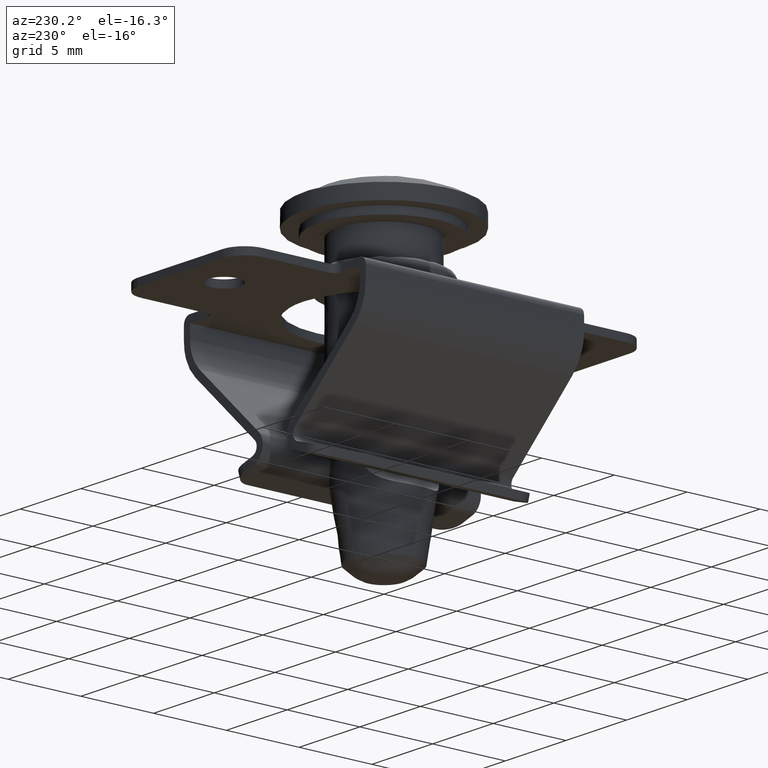
[diagram: clean part render]
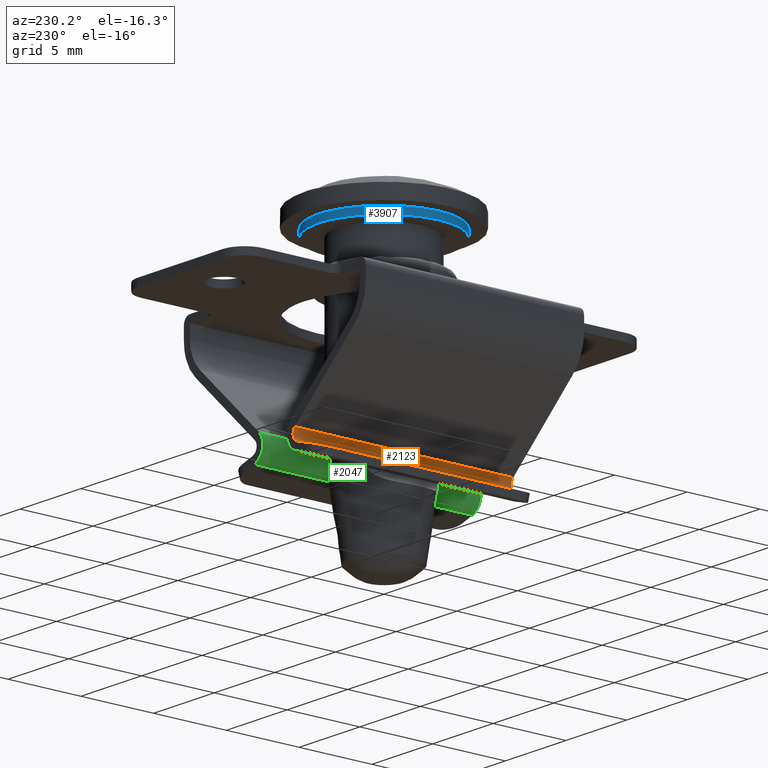
[diagram: same view with three faces highlighted in distinct colors, each labeled with its STEP entity id]
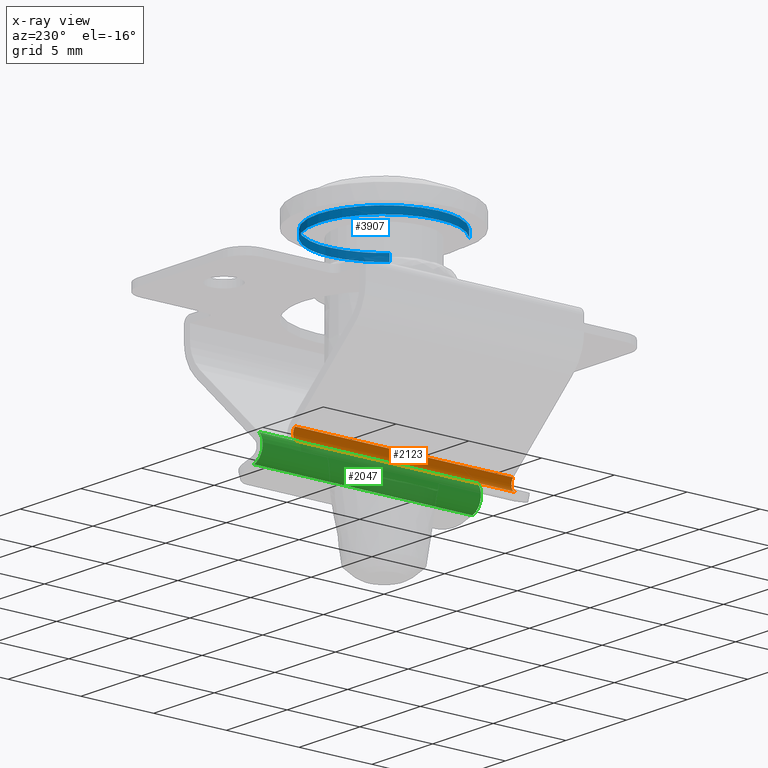
[diagram: x-ray of the same camera — body ghosted, the three highlighted faces saturated]
A machine part, auxiliary view with three faces highlighted in distinct colors.
The next image is the same camera in x-ray (body ghosted, the three faces saturated) — at least one of them is partly hidden behind the body in this view.
Their STEP definitions:

[orange] entity #2123 — the highlighted face is a freeform B-spline surface patch.
#1549=CARTESIAN_POINT('',(-7.500000000000000,8.971792748907109,-1.834435504776570));
#1550=VERTEX_POINT('',#1549);
#1556=CARTESIAN_POINT('',(-7.500000000000000,8.133000007164240,-1.659999992273685));
#1557=VERTEX_POINT('',#1556);
#1558=CARTESIAN_POINT('',(-7.500000000000000,8.133000007164240,-1.659999992273685));
#1559=CARTESIAN_POINT('',(-7.499999999999996,8.176670734481323,-1.612803575467292));
#1560=CARTESIAN_POINT('',(-7.500000000000007,8.260492134698961,-1.551787545377183));
#1561=CARTESIAN_POINT('',(-7.500000000000000,8.398446009235787,-1.505296150107499));
#1562=CARTESIAN_POINT('',(-7.499999999999994,8.522247537905525,-1.494848047483447));
#1563=CARTESIAN_POINT('',(-7.500000000000014,8.639311870682144,-1.515302620307627));
#1564=CARTESIAN_POINT('',(-7.500000000000010,8.748476894084332,-1.561177648108328));
#1565=CARTESIAN_POINT('',(-7.499999999999954,8.840626944895684,-1.627335518974190));
#1566=CARTESIAN_POINT('',(-7.500000000000094,8.921175771671351,-1.721618887267163));
#1567=CARTESIAN_POINT('',(-7.499999999999929,8.957608628739832,-1.793991250087982));
#1568=CARTESIAN_POINT('',(-7.500000000000000,8.971792748907109,-1.834435504776570));
#1569=B_SPLINE_CURVE_WITH_KNOTS('',3,(#1558,#1559,#1560,#1561,#1562,#1563,#1564,#1565,#1566,#1567,#1568),.UNSPECIFIED.,.F.,.U.,(4,1,1,1,1,1,1,1,4),(0.000000047820411,0.192873065164812,0.305389872596613,0.433978648164178,0.562550272810508,0.658989671225016,0.787577078262134,0.900091944385743,1.028671961137329),.UNSPECIFIED.);
#1570=EDGE_CURVE('',#1557,#1550,#1569,.T.);
#1891=CARTESIAN_POINT('',(7.500000000000000,8.971792748907101,-1.834435504776575));
#1892=VERTEX_POINT('',#1891);
#1995=CARTESIAN_POINT('',(7.500000000000000,8.133000007164240,-1.659999992273685));
#1996=VERTEX_POINT('',#1995);
#2002=CARTESIAN_POINT('',(7.500000000000000,8.971792748907101,-1.834435504776575));
#2003=CARTESIAN_POINT('',(7.500000000000009,8.950556566477342,-1.773748070728701));
#2004=CARTESIAN_POINT('',(7.499999999999984,8.892492286803103,-1.674937850863475));
#2005=CARTESIAN_POINT('',(7.500000000000016,8.780971890801318,-1.580447431258133));
#2006=CARTESIAN_POINT('',(7.499999999999990,8.670153406886309,-1.525262321422904));
#2007=CARTESIAN_POINT('',(7.500000000000017,8.554646030767096,-1.497330979364046));
#2008=CARTESIAN_POINT('',(7.499999999999987,8.435830156894996,-1.499702661000997));
#2009=CARTESIAN_POINT('',(7.500000000000013,8.326166762356614,-1.527098629260590));
#2010=CARTESIAN_POINT('',(7.500000000000003,8.224397288371923,-1.576715401008296));
#2011=CARTESIAN_POINT('',(7.499999999999989,8.162132545923557,-1.628563786054673));
#2012=CARTESIAN_POINT('',(7.500000000000000,8.133000007164240,-1.659999992273685));
#2013=B_SPLINE_CURVE_WITH_KNOTS('',3,(#2002,#2003,#2004,#2005,#2006,#2007,#2008,#2009,#2010,#2011,#2012),.UNSPECIFIED.,.F.,.U.,(4,1,1,1,1,1,1,1,4),(0.000000047820665,0.192873065164996,0.337537578228763,0.433978648164281,0.562550272810561,0.691137028152030,0.787577078262161,0.900091944385748,1.028671961137325),.UNSPECIFIED.);
#2014=EDGE_CURVE('',#1892,#1996,#2013,.T.);
#2095=CARTESIAN_POINT('',(-7.875000000000000,8.123180026408198,-1.670907028688580));
#2096=CARTESIAN_POINT('',(7.884375000000000,8.123180026408198,-1.670907028688580));
#2097=CARTESIAN_POINT('',(-7.875000000000002,8.742338489134074,-0.962582435342465));
#2098=CARTESIAN_POINT('',(7.884375000000000,8.742338489134074,-0.962582435342465));
#2099=CARTESIAN_POINT('',(-7.875000000000000,8.983337172102607,-1.871978150260585));
#2100=CARTESIAN_POINT('',(7.884375000000000,8.983337172102607,-1.871978150260585));
#2108=(BOUNDED_SURFACE()B_SPLINE_SURFACE(1,2,((#2095,#2097,#2099),(#2096,#2098,#2100)),.UNSPECIFIED.,.F.,.F.,.U.)B_SPLINE_SURFACE_WITH_KNOTS((2,2),(3,3),(0.0,15.759375000000000),(0.0,1.0),.UNSPECIFIED.)GEOMETRIC_REPRESENTATION_ITEM()RATIONAL_B_SPLINE_SURFACE(((1.0,0.469471562785891,1.0),(1.0,0.469471562785891,1.0)))REPRESENTATION_ITEM('')SURFACE());
#2109=CARTESIAN_POINT('',(-7.500000000000000,8.971792748907109,-1.834435504776570));
#2110=CARTESIAN_POINT('',(7.500000000000000,8.971792748907101,-1.834435504776575));
#2111=QUASI_UNIFORM_CURVE('',1,(#2109,#2110),.UNSPECIFIED.,.F.,.U.);
#2112=EDGE_CURVE('',#1550,#1892,#2111,.T.);
#2113=ORIENTED_EDGE('',*,*,#2112,.T.);
#2114=ORIENTED_EDGE('',*,*,#2014,.T.);
#2115=CARTESIAN_POINT('',(-7.500000000000000,8.133000007164240,-1.659999992273685));
#2116=CARTESIAN_POINT('',(7.500000000000000,8.133000007164240,-1.659999992273685));
#2117=QUASI_UNIFORM_CURVE('',1,(#2115,#2116),.UNSPECIFIED.,.F.,.U.);
#2118=EDGE_CURVE('',#1557,#1996,#2117,.T.);
#2119=ORIENTED_EDGE('',*,*,#2118,.F.);
#2120=ORIENTED_EDGE('',*,*,#1570,.T.);
#2121=EDGE_LOOP('',(#2113,#2114,#2119,#2120));
#2122=FACE_OUTER_BOUND('',#2121,.T.);
#2123=ADVANCED_FACE('',(#2122),#2108,.F.);

[blue] entity #3907 — the highlighted face is a freeform B-spline surface patch.
#3741=CARTESIAN_POINT('',(-2.905839172719114,-3.436000393232092,19.512500000000014));
#3742=CARTESIAN_POINT('',(-3.004176027767804,-3.352836524541817,19.512499999999999));
#3743=CARTESIAN_POINT('',(-3.097595590621892,-3.264184669555293,19.512499999999999));
#3744=CARTESIAN_POINT('',(-6.361780260177186,-0.166589078933401,19.512499999999999));
#3745=CARTESIAN_POINT('',(-3.264184669555293,3.097595590621892,19.512499999999999));
#3746=CARTESIAN_POINT('',(-0.166589078933401,6.361780260177186,19.512499999999999));
#3747=CARTESIAN_POINT('',(3.097595590621892,3.264184669555293,19.512499999999999));
#3748=CARTESIAN_POINT('',(6.361780260177186,0.166589078933401,19.512499999999999));
#3749=CARTESIAN_POINT('',(3.264184669555293,-3.097595590621892,19.512499999999999));
#3750=CARTESIAN_POINT('',(-2.905839172719114,-3.436000393232092,18.987187500000001));
#3751=CARTESIAN_POINT('',(-3.004176027767804,-3.352836524541817,18.987187500000001));
#3752=CARTESIAN_POINT('',(-3.097595590621892,-3.264184669555293,18.987187500000001));
#3753=CARTESIAN_POINT('',(-6.361780260177186,-0.166589078933401,18.987187499999997));
#3754=CARTESIAN_POINT('',(-3.264184669555293,3.097595590621892,18.987187500000001));
#3755=CARTESIAN_POINT('',(-0.166589078933401,6.361780260177186,18.987187499999997));
#3756=CARTESIAN_POINT('',(3.097595590621892,3.264184669555293,18.987187500000001));
#3757=CARTESIAN_POINT('',(6.361780260177186,0.166589078933401,18.987187499999997));
#3758=CARTESIAN_POINT('',(3.264184669555293,-3.097595590621892,18.987187500000001));
#3766=(BOUNDED_SURFACE()B_SPLINE_SURFACE(2,1,((#3741,#3750),(#3742,#3751),(#3743,#3752),(#3744,#3753),(#3745,#3754),(#3746,#3755),(#3747,#3756),(#3748,#3757),(#3749,#3758)),.UNSPECIFIED.,.F.,.F.,.U.)B_SPLINE_SURFACE_WITH_KNOTS((3,2,2,2,3),(2,2),(0.0,0.298233764908629,7.754077887624337,15.209922010340049,22.665766133055751),(0.0,1.0),.UNSPECIFIED.)GEOMETRIC_REPRESENTATION_ITEM()RATIONAL_B_SPLINE_SURFACE(((0.977505800795127,0.977505800795127),(0.988284271247462,0.988284271247462),(1.0,1.0),(0.707106781186548,0.707106781186548),(1.0,1.0),(0.707106781186548,0.707106781186548),(1.0,1.0),(0.707106781186548,0.707106781186548),(1.0,1.0)))REPRESENTATION_ITEM('')SURFACE());
#3767=CARTESIAN_POINT('',(-2.905839271581737,-3.436000499743349,18.999999999998639));
#3768=VERTEX_POINT('',#3767);
#3769=CARTESIAN_POINT('',(-4.500000000000000,0.0,19.0));
#3770=VERTEX_POINT('',#3769);
#3771=CARTESIAN_POINT('',(-2.905839271581737,-3.436000499743349,18.999999999998639));
#3772=CARTESIAN_POINT('',(-3.185773554908001,-3.199383879267502,18.999999999998799));
#3773=CARTESIAN_POINT('',(-3.561829630638095,-2.792732886139677,18.999999999998860));
#3774=CARTESIAN_POINT('',(-4.008524374156168,-2.085563259212208,18.999999999999190));
#3775=CARTESIAN_POINT('',(-4.288032545918969,-1.437597772170152,18.999999999999432));
#3776=CARTESIAN_POINT('',(-4.463365417796361,-0.702504246642214,18.999999999999709));
#3777=CARTESIAN_POINT('',(-4.500011560178890,-0.234169531220394,18.999999999999918));
#3778=CARTESIAN_POINT('',(-4.500000000000000,0.0,19.0));
#3779=B_SPLINE_CURVE_WITH_KNOTS('',3,(#3771,#3772,#3773,#3774,#3775,#3776,#3777,#3778),.UNSPECIFIED.,.F.,.U.,(4,1,1,1,1,4),(6.967190E-009,1.099579415270608,1.649370970763869,2.504596954173040,3.207106231559978,3.909614863635972),.UNSPECIFIED.);
#3780=EDGE_CURVE('',#3768,#3770,#3779,.T.);
#3781=ORIENTED_EDGE('',*,*,#3780,.F.);
#3782=CARTESIAN_POINT('',(-2.905839271512515,-3.436000499801891,19.500000000000000));
#3783=VERTEX_POINT('',#3782);
#3784=CARTESIAN_POINT('',(-2.905839271512515,-3.436000499801891,19.500000000000000));
#3785=CARTESIAN_POINT('',(-2.905839271581737,-3.436000499743349,18.999999999998639));
#3786=QUASI_UNIFORM_CURVE('',1,(#3784,#3785),.UNSPECIFIED.,.F.,.U.);
#3787=EDGE_CURVE('',#3783,#3768,#3786,.T.);
#3788=ORIENTED_EDGE('',*,*,#3787,.F.);
#3789=CARTESIAN_POINT('',(-4.500000000000000,0.0,19.500000000000000));
#3790=VERTEX_POINT('',#3789);
#3791=CARTESIAN_POINT('',(-2.905839271512515,-3.436000499801891,19.500000000000000));
#3792=CARTESIAN_POINT('',(-3.076872505834279,-3.291369981887627,19.500000000000011));
#3793=CARTESIAN_POINT('',(-3.411845991498382,-2.962189245745997,19.500000000000021));
#3794=CARTESIAN_POINT('',(-3.813409628015430,-2.420632730963018,19.499999999999961));
#3795=CARTESIAN_POINT('',(-4.100849318959452,-1.880009800253740,19.500000000000050));
#3796=CARTESIAN_POINT('',(-4.316450640093171,-1.318388848197045,19.500000000000089));
#3797=CARTESIAN_POINT('',(-4.463364429353994,-0.702505204156519,19.499999999999829));
#3798=CARTESIAN_POINT('',(-4.500014556150179,-0.234169762712393,19.500000000000121));
#3799=CARTESIAN_POINT('',(-4.500000000000000,0.0,19.500000000000000));
#3800=B_SPLINE_CURVE_WITH_KNOTS('',3,(#3791,#3792,#3793,#3794,#3795,#3796,#3797,#3798,#3799),.UNSPECIFIED.,.F.,.U.,(4,1,1,1,1,1,4),(6.967205E-009,0.671962734726780,1.405017916457402,2.015890263878275,2.504596954231114,3.207106231634340,3.909614863726631),.UNSPECIFIED.);
#3801=EDGE_CURVE('',#3783,#3790,#3800,.T.);
#3802=ORIENTED_EDGE('',*,*,#3801,.T.);
#3803=CARTESIAN_POINT('',(0.000000588841200,4.499999999999962,19.500000000000000));
#3804=VERTEX_POINT('',#3803);
#3805=CARTESIAN_POINT('',(-4.500000000000000,0.0,19.500000000000000));
#3806=CARTESIAN_POINT('',(-4.500047640659374,0.303730601035654,19.500000000000071));
#3807=CARTESIAN_POINT('',(-4.448541250168162,0.809923307536452,19.499999999999829));
#3808=CARTESIAN_POINT('',(-4.266464232065808,1.467834475197188,19.500000000000210));
#3809=CARTESIAN_POINT('',(-4.017681657765785,2.063329566712382,19.499999999999812));
#3810=CARTESIAN_POINT('',(-3.678666397561236,2.625013837085790,19.500000000000039));
#3811=CARTESIAN_POINT('',(-3.171891136312692,3.223581346718181,19.500000000000000));
#3812=CARTESIAN_POINT('',(-2.611249796335556,3.692407004062425,19.499999999999950));
#3813=CARTESIAN_POINT('',(-2.052205053937086,4.015876154965495,19.500000000000011));
#3814=CARTESIAN_POINT('',(-1.494852477284561,4.258878161815503,19.500000000000000));
#3815=CARTESIAN_POINT('',(-0.837542293383547,4.447306197242847,19.499999999999940));
#3816=CARTESIAN_POINT('',(-0.285319679317905,4.500032079022867,19.499999999999950));
#3817=CARTESIAN_POINT('',(0.000000588841200,4.499999999999962,19.500000000000000));
#3818=B_SPLINE_CURVE_WITH_KNOTS('',3,(#3805,#3806,#3807,#3808,#3809,#3810,#3811,#3812,#3813,#3814,#3815,#3816,#3817),.UNSPECIFIED.,.F.,.U.,(4,1,1,1,1,1,1,1,1,1,4),(0.000000020420186,0.911180480753123,1.518641582108043,2.043266651518565,2.844007677394900,3.479080105565057,4.390253509514920,5.025328967888424,5.411893680457210,6.212638836206521,7.068594891014745),.UNSPECIFIED.);
#3819=EDGE_CURVE('',#3790,#3804,#3818,.T.);
#3820=ORIENTED_EDGE('',*,*,#3819,.T.);
#3821=CARTESIAN_POINT('',(4.500000000000000,0.0,19.500000000000000));
#3822=VERTEX_POINT('',#3821);
#3823=CARTESIAN_POINT('',(0.000000588841200,4.499999999999962,19.500000000000000));
#3824=CARTESIAN_POINT('',(0.184077028389136,4.500003425898332,19.500000000000021));
#3825=CARTESIAN_POINT('',(0.607455930381796,4.473996540574977,19.500000000000000));
#3826=CARTESIAN_POINT('',(1.177260643751965,4.357019149096866,19.499999999999918));
#3827=CARTESIAN_POINT('',(1.821504524792498,4.133179706045200,19.500000000000298));
#3828=CARTESIAN_POINT('',(2.386872071057021,3.837661704665374,19.499999999999389));
#3829=CARTESIAN_POINT('',(2.882051767729744,3.467994808030852,19.500000000000469));
#3830=CARTESIAN_POINT('',(3.292652374539793,3.084220742159210,19.499999999999591));
#3831=CARTESIAN_POINT('',(3.730884449498461,2.560225165466606,19.500000000000149));
#3832=CARTESIAN_POINT('',(4.114030927617885,1.883868032171247,19.500000000000121));
#3833=CARTESIAN_POINT('',(4.338186849038465,1.238593218391304,19.499999999999879));
#3834=CARTESIAN_POINT('',(4.467894678509404,0.635059223535907,19.500000000000139));
#3835=CARTESIAN_POINT('',(4.500017817502476,0.248504838822584,19.499999999999869));
#3836=CARTESIAN_POINT('',(4.500000000000000,0.0,19.500000000000000));
#3837=B_SPLINE_CURVE_WITH_KNOTS('',3,(#3823,#3824,#3825,#3826,#3827,#3828,#3829,#3830,#3831,#3832,#3833,#3834,#3835,#3836),.UNSPECIFIED.,.F.,.U.,(4,1,1,1,1,1,1,1,1,1,1,4),(0.000000020473748,0.552230868754044,1.270134197890891,1.739536763959507,2.595501552504408,3.175354932014174,3.589514559874035,4.279808795224893,5.218610211523167,5.908907697461250,6.323082554488142,7.068594227252427),.UNSPECIFIED.);
#3838=EDGE_CURVE('',#3804,#3822,#3837,.T.);
#3839=ORIENTED_EDGE('',*,*,#3838,.T.);
#3840=CARTESIAN_POINT('',(3.264184551240139,-3.097595501734862,19.500000000000000));
#3841=VERTEX_POINT('',#3840);
#3842=CARTESIAN_POINT('',(4.500000000000000,0.0,19.500000000000000));
#3843=CARTESIAN_POINT('',(4.500013247987531,-0.249118077258339,19.499999999999961));
#3844=CARTESIAN_POINT('',(4.454099033070094,-0.800739555067997,19.500000000000099));
#3845=CARTESIAN_POINT('',(4.253634620474128,-1.533923763466624,19.499999999999961));
#3846=CARTESIAN_POINT('',(3.877024070631508,-2.342297514392991,19.499999999999950));
#3847=CARTESIAN_POINT('',(3.527628687741458,-2.820154103583067,19.500000000000110));
#3848=CARTESIAN_POINT('',(3.264184551240139,-3.097595501734862,19.500000000000000));
#3849=B_SPLINE_CURVE_WITH_KNOTS('',3,(#3842,#3843,#3844,#3845,#3846,#3847,#3848),.UNSPECIFIED.,.F.,.U.,(4,1,1,1,4),(4.870334E-009,0.747356135298023,1.654862435139214,2.268759620760826,3.416486980069099),.UNSPECIFIED.);
#3850=EDGE_CURVE('',#3822,#3841,#3849,.T.);
#3851=ORIENTED_EDGE('',*,*,#3850,.T.);
#3852=CARTESIAN_POINT('',(3.264184551098147,-3.097595501884490,19.000000000004640));
#3853=VERTEX_POINT('',#3852);
#3854=CARTESIAN_POINT('',(3.264184551240139,-3.097595501734862,19.500000000000000));
#3855=CARTESIAN_POINT('',(3.264184551098147,-3.097595501884490,19.000000000004640));
#3856=QUASI_UNIFORM_CURVE('',1,(#3854,#3855),.UNSPECIFIED.,.F.,.U.);
#3857=EDGE_CURVE('',#3841,#3853,#3856,.T.);
#3858=ORIENTED_EDGE('',*,*,#3857,.T.);
#3859=CARTESIAN_POINT('',(4.500000000000000,0.0,19.0));
#3860=VERTEX_POINT('',#3859);
#3861=CARTESIAN_POINT('',(4.500000000000000,0.0,19.0));
#3862=CARTESIAN_POINT('',(4.500046189073533,-0.302505218425749,19.000000000000501));
#3863=CARTESIAN_POINT('',(4.449556822531994,-0.800722973062059,19.000000000001119));
#3864=CARTESIAN_POINT('',(4.259074355859011,-1.497352375640515,19.000000000002292));
#3865=CARTESIAN_POINT('',(4.033410602514708,-2.021844943351866,19.000000000003070));
#3866=CARTESIAN_POINT('',(3.708683249522810,-2.574975717783404,19.000000000003709));
#3867=CARTESIAN_POINT('',(3.447935770988543,-2.904000621611451,19.000000000004452));
#3868=CARTESIAN_POINT('',(3.264184551098147,-3.097595501884490,19.000000000004640));
#3869=B_SPLINE_CURVE_WITH_KNOTS('',3,(#3861,#3862,#3863,#3864,#3865,#3866,#3867,#3868),.UNSPECIFIED.,.F.,.U.,(4,1,1,1,1,4),(4.869848E-009,0.907504478657108,1.494716913576298,2.161995087988213,2.615747966359876,3.416486980275375),.UNSPECIFIED.);
#3870=EDGE_CURVE('',#3860,#3853,#3869,.T.);
#3871=ORIENTED_EDGE('',*,*,#3870,.F.);
#3872=CARTESIAN_POINT('',(0.000000588841200,4.499999999999962,19.0));
#3873=VERTEX_POINT('',#3872);
#3874=CARTESIAN_POINT('',(0.000000588841200,4.499999999999962,19.0));
#3875=CARTESIAN_POINT('',(0.239299941865763,4.500017217707193,19.000000000000050));
#3876=CARTESIAN_POINT('',(0.662671923517313,4.466145096726708,18.999999999999940));
#3877=CARTESIAN_POINT('',(1.274481264584797,4.328763687845162,19.000000000000050));
#3878=CARTESIAN_POINT('',(1.811798154193700,4.132774854032727,18.999999999999869));
#3879=CARTESIAN_POINT('',(2.425704079065157,3.814295255655927,19.000000000000330));
#3880=CARTESIAN_POINT('',(2.966895423107242,3.410350741639975,18.999999999999901));
#3881=CARTESIAN_POINT('',(3.453214025019762,2.905731140827781,19.000000000000060));
#3882=CARTESIAN_POINT('',(3.847332866654501,2.370936469113222,19.000000000000270));
#3883=CARTESIAN_POINT('',(4.181542463755793,1.721942649147526,18.999999999999300));
#3884=CARTESIAN_POINT('',(4.435656013577683,0.911161759698104,19.000000000000728));
#3885=CARTESIAN_POINT('',(4.500061549576556,0.331343250390778,18.999999999999609));
#3886=CARTESIAN_POINT('',(4.500000000000000,0.0,19.0));
#3887=B_SPLINE_CURVE_WITH_KNOTS('',3,(#3874,#3875,#3876,#3877,#3878,#3879,#3880,#3881,#3882,#3883,#3884,#3885,#3886),.UNSPECIFIED.,.F.,.U.,(4,1,1,1,1,1,1,1,1,1,4),(0.000000020473748,0.717896329648025,1.270134197890891,1.877596235765652,2.429834300933950,3.341016199324105,3.893239546361931,4.528315414527145,5.329057435633021,6.074575935213428,7.068594227252427),.UNSPECIFIED.);
#3888=EDGE_CURVE('',#3873,#3860,#3887,.T.);
#3889=ORIENTED_EDGE('',*,*,#3888,.F.);
#3890=CARTESIAN_POINT('',(-4.500000000000000,0.0,19.0));
#3891=CARTESIAN_POINT('',(-4.500065864044933,0.349750790723124,19.000000000000060));
#3892=CARTESIAN_POINT('',(-4.426668544212285,0.975588515477063,18.999999999999918));
#3893=CARTESIAN_POINT('',(-4.166765640936893,1.746324251641972,19.000000000000060));
#3894=CARTESIAN_POINT('',(-3.822775583817532,2.409328059136780,19.0));
#3895=CARTESIAN_POINT('',(-3.422401044576896,2.952660161522813,18.999999999999869));
#3896=CARTESIAN_POINT('',(-2.861176539655287,3.500271656530401,19.000000000000011));
#3897=CARTESIAN_POINT('',(-2.276467777209654,3.906738214060522,19.000000000000011));
#3898=CARTESIAN_POINT('',(-1.649966919283730,4.200660873993246,19.000000000000028));
#3899=CARTESIAN_POINT('',(-0.920347443894847,4.431840617006853,18.999999999999918));
#3900=CARTESIAN_POINT('',(-0.368164041319647,4.500092036701440,19.000000000000082));
#3901=CARTESIAN_POINT('',(0.000000588841200,4.499999999999962,19.0));
#3902=B_SPLINE_CURVE_WITH_KNOTS('',3,(#3890,#3891,#3892,#3893,#3894,#3895,#3896,#3897,#3898,#3899,#3900,#3901),.UNSPECIFIED.,.F.,.U.,(4,1,1,1,1,1,1,1,1,4),(0.000000020420186,1.049243004461681,1.877596412028096,2.429834529070172,3.285796683918337,3.893239912171152,4.776822595145716,5.411893680457210,5.964131573527257,7.068594891014745),.UNSPECIFIED.);
#3903=EDGE_CURVE('',#3770,#3873,#3902,.T.);
#3904=ORIENTED_EDGE('',*,*,#3903,.F.);
#3905=EDGE_LOOP('',(#3781,#3788,#3802,#3820,#3839,#3851,#3858,#3871,#3889,#3904));
#3906=FACE_OUTER_BOUND('',#3905,.T.);
#3907=ADVANCED_FACE('',(#3906),#3766,.T.);

[green] entity #2047 — the highlighted face is a freeform B-spline surface patch.
#998=CARTESIAN_POINT('',(7.500000000000000,9.457000004324881,1.709700014259715));
#999=VERTEX_POINT('',#998);
#1109=CARTESIAN_POINT('',(7.500000000000000,7.781264474497470,1.304716428799914));
#1110=VERTEX_POINT('',#1109);
#1116=CARTESIAN_POINT('',(7.500000000000000,7.781264474497470,1.304716428799914));
#1117=CARTESIAN_POINT('',(7.499999999999993,7.856483254260086,1.226859728837523));
#1118=CARTESIAN_POINT('',(7.500000000000019,7.992925702768030,1.125466843010555));
#1119=CARTESIAN_POINT('',(7.499999999999976,8.234385263919615,1.026782346253810));
#1120=CARTESIAN_POINT('',(7.500000000000017,8.487878443332864,0.985645592022386));
#1121=CARTESIAN_POINT('',(7.499999999999996,8.759368450295197,1.021594257966155));
#1122=CARTESIAN_POINT('',(7.500000000000005,8.985180545739622,1.116984674708074));
#1123=CARTESIAN_POINT('',(7.500000000000003,9.185722078961685,1.257264239980560));
#1124=CARTESIAN_POINT('',(7.500000000000003,9.353217199749960,1.452724228797560));
#1125=CARTESIAN_POINT('',(7.500000000000005,9.431884536005336,1.626827741570758));
#1126=CARTESIAN_POINT('',(7.500000000000000,9.457000004324881,1.709700014259715));
#1127=B_SPLINE_CURVE_WITH_KNOTS('',3,(#1116,#1117,#1118,#1119,#1120,#1121,#1122,#1123,#1124,#1125,#1126),.UNSPECIFIED.,.F.,.U.,(4,1,1,1,1,1,1,1,4),(0.000000072871833,0.324746898296743,0.503359228882390,0.779404395661839,1.087896850013488,1.315225760399593,1.510077028288186,1.818598265311480,2.078387884136862),.UNSPECIFIED.);
#1128=EDGE_CURVE('',#1110,#999,#1127,.T.);
#1355=CARTESIAN_POINT('',(-7.500000000000000,9.457000004324881,1.709700014259715));
#1356=VERTEX_POINT('',#1355);
#1362=CARTESIAN_POINT('',(-7.500000000000000,7.781264474497470,1.304716428799914));
#1363=VERTEX_POINT('',#1362);
#1364=CARTESIAN_POINT('',(-7.500000000000000,9.457000004324881,1.709700014259715));
#1365=CARTESIAN_POINT('',(-7.499999999999999,9.425645069683291,1.606083690868067));
#1366=CARTESIAN_POINT('',(-7.500000000000006,9.343290369091474,1.438807374071308));
#1367=CARTESIAN_POINT('',(-7.499999999999996,9.186571492428335,1.264715501499069));
#1368=CARTESIAN_POINT('',(-7.499999999999998,9.035487810797600,1.149590264245268));
#1369=CARTESIAN_POINT('',(-7.500000000000010,8.876372637487489,1.066606307035960));
#1370=CARTESIAN_POINT('',(-7.499999999999995,8.693758679974117,1.012944794544212));
#1371=CARTESIAN_POINT('',(-7.500000000000012,8.499098982550537,0.993586026875578));
#1372=CARTESIAN_POINT('',(-7.499999999999996,8.282381563873969,1.014375660155942));
#1373=CARTESIAN_POINT('',(-7.500000000000004,8.024296230521637,1.103107432324360));
#1374=CARTESIAN_POINT('',(-7.500000000000004,7.860235020089347,1.222958690398515));
#1375=CARTESIAN_POINT('',(-7.500000000000000,7.781264474497470,1.304716428799914));
#1376=B_SPLINE_CURVE_WITH_KNOTS('',3,(#1364,#1365,#1366,#1367,#1368,#1369,#1370,#1371,#1372,#1373,#1374,#1375),.UNSPECIFIED.,.F.,.U.,(4,1,1,1,1,1,1,1,1,4),(0.000000072872606,0.324746898297542,0.552072938092959,0.698210001939271,0.893069451522549,1.087896850013935,1.266515934048698,1.477603224613326,1.737404412600843,2.078387884136859),.UNSPECIFIED.);
#1377=EDGE_CURVE('',#1356,#1363,#1376,.T.);
#2019=CARTESIAN_POINT('',(-7.875000000000000,9.468393716809988,1.750333646862375));
#2020=CARTESIAN_POINT('',(7.884375000000000,9.468393716809988,1.750333646862375));
#2021=CARTESIAN_POINT('',(-7.875000000000002,8.978505963213600,-0.150147356813215));
#2022=CARTESIAN_POINT('',(7.884375000000000,8.978505963213600,-0.150147356813215));
#2023=CARTESIAN_POINT('',(-7.875000000000000,7.728933330595936,1.363254867404939));
#2024=CARTESIAN_POINT('',(7.884375000000000,7.728933330595936,1.363254867404939));
#2032=(BOUNDED_SURFACE()B_SPLINE_SURFACE(1,2,((#2019,#2021,#2023),(#2020,#2022,#2024)),.UNSPECIFIED.,.F.,.F.,.U.)B_SPLINE_SURFACE_WITH_KNOTS((2,2),(3,3),(0.0,15.759375000000000),(0.0,2.451196171592234),.UNSPECIFIED.)GEOMETRIC_REPRESENTATION_ITEM()RATIONAL_B_SPLINE_SURFACE(((1.0,0.453990499739547,1.0),(1.0,0.453990499739547,1.0)))REPRESENTATION_ITEM('')SURFACE());
#2033=ORIENTED_EDGE('',*,*,#1128,.F.);
#2034=CARTESIAN_POINT('',(-7.500000000000000,7.781264474497470,1.304716428799914));
#2035=CARTESIAN_POINT('',(7.500000000000000,7.781264474497470,1.304716428799914));
#2036=QUASI_UNIFORM_CURVE('',1,(#2034,#2035),.UNSPECIFIED.,.F.,.U.);
#2037=EDGE_CURVE('',#1363,#1110,#2036,.T.);
#2038=ORIENTED_EDGE('',*,*,#2037,.F.);
#2039=ORIENTED_EDGE('',*,*,#1377,.F.);
#2040=CARTESIAN_POINT('',(-7.500000000000000,9.457000004324881,1.709700014259715));
#2041=CARTESIAN_POINT('',(7.500000000000000,9.457000004324881,1.709700014259715));
#2042=QUASI_UNIFORM_CURVE('',1,(#2040,#2041),.UNSPECIFIED.,.F.,.U.);
#2043=EDGE_CURVE('',#1356,#999,#2042,.T.);
#2044=ORIENTED_EDGE('',*,*,#2043,.T.);
#2045=EDGE_LOOP('',(#2033,#2038,#2039,#2044));
#2046=FACE_OUTER_BOUND('',#2045,.T.);
#2047=ADVANCED_FACE('',(#2046),#2032,.T.);